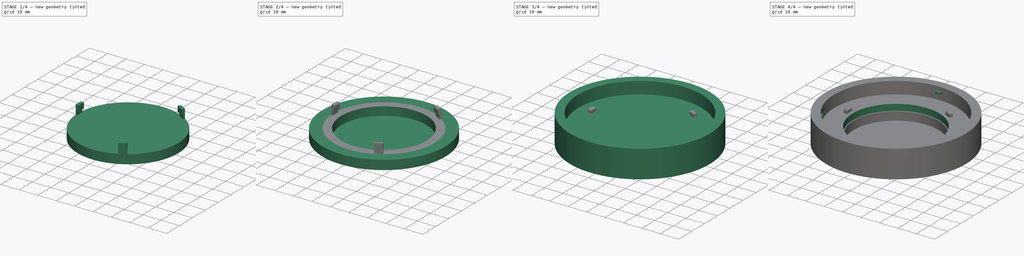
[diagram: build sequence overview — one tinted view per stage of 4, left to right]
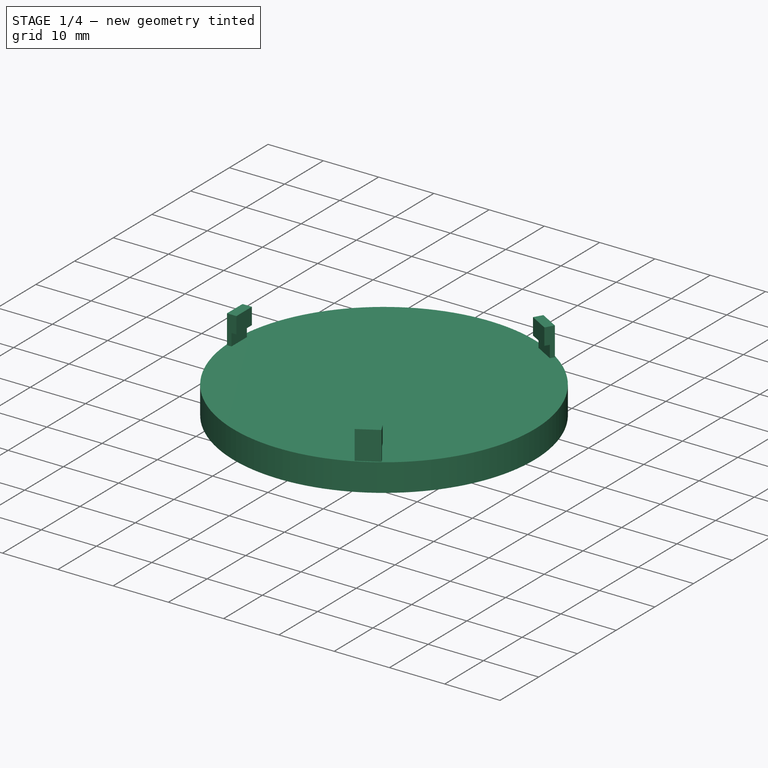
[diagram: stage 1 of 4 — iso view after this stage's code; geometry added in this stage tinted green]
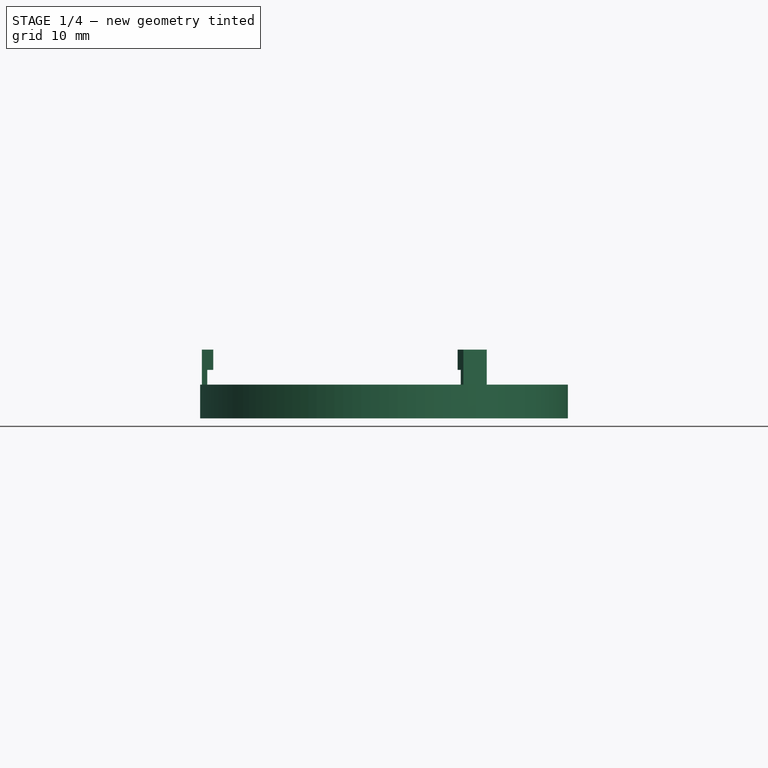
[diagram: stage 1 of 4 — front view after this stage's code; geometry added in this stage tinted green]
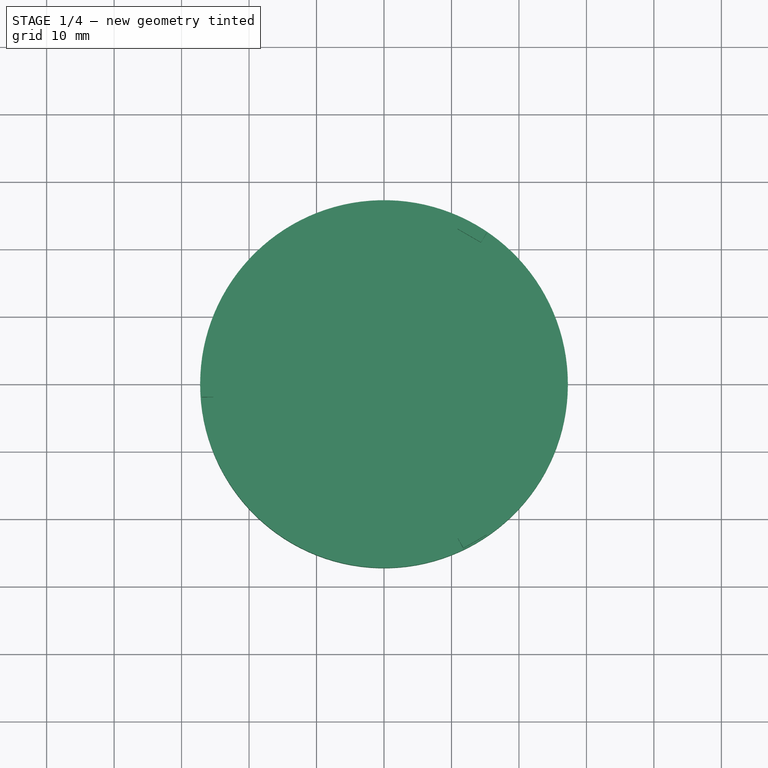
[diagram: stage 1 of 4 — top view after this stage's code; geometry added in this stage tinted green]
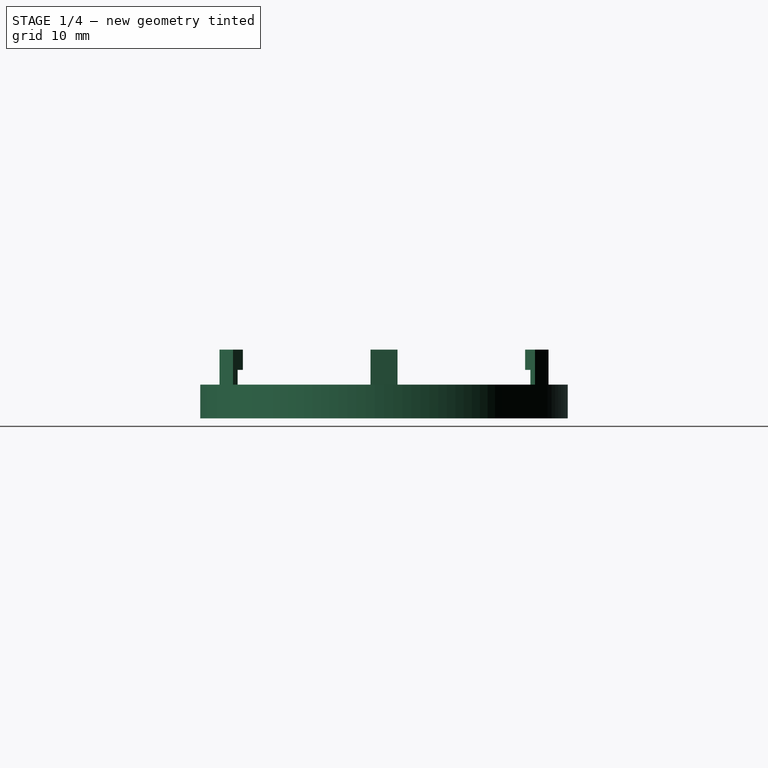
[diagram: stage 1 of 4 — right view after this stage's code; geometry added in this stage tinted green]
FCSTD DOCUMENT  (FreeCAD 0.19R22756 (Git))
Label: kitchen-lights-cover
License: All rights reserved
LicenseURL: http://en.wikipedia.org/wiki/All_rights_reserved
objects: Sketcher::SketchObject×9, PartDesign::Pad×6, PartDesign::Pocket×3, PartDesign::PolarPattern×2, PartDesign::Body×2, PartDesign::Plane×1, PartDesign::Fillet×1
note: 34 computed .brp shape members not serialized (recipe doc carries the construction recipe); baked Part::Feature solids carry a one-line shape summary decoded from their .brp

FEATURE [PartDesign::Body] Body  label="LightCover"
  Group = -> [Sketch,Pad,Sketch001,Pocket,Sketch002,Pocket001,DatumPlane,Sketch003,Pad001,PolarPattern]
  Origin = -> Origin
  Tip = -> PolarPattern
FEATURE [Sketcher::SketchObject] Sketch004
  MapMode = 5
  Support = -> [XY_Plane001]
  sketch-geometry (1):
    g0: Circle CenterX=0 CenterY=0 CenterZ=0 NormalX=0 NormalY=0 NormalZ=1 AngleXU=0 Radius=27.25
  constraints (2):
    c: Coincident(g0,g-1)
    c: Radius(g0) = 27.25  'base_radius'
FEATURE [PartDesign::Pad] Pad002
  Direction = (1,1,1)
  Length = 5
  Length2 = 100
  Profile = -> Sketch004
  Type = 0
FEATURE [Sketcher::SketchObject] Sketch005
  ExternalGeometry = -> [Pad002]
  MapMode = 5
  Placement = pos=(0,0,0) rot=(1,0,0;1.5708rad)
  Support = -> [XZ_Plane001]
  sketch-geometry (8):
    g0: LineSegment [constr] StartX=-27.25 StartY=5 StartZ=0 EndX=-27.25 EndY=0 EndZ=0
    g1: LineSegment StartX=-27 StartY=5 StartZ=0 EndX=-27 EndY=10.2 EndZ=0
    g2: LineSegment StartX=-27 StartY=10.2 StartZ=0 EndX=-25.3 EndY=10.2 EndZ=0
    g3: LineSegment StartX=-25.3 StartY=10.2 StartZ=0 EndX=-25.3 EndY=7.2 EndZ=0
    g4: LineSegment StartX=-25.3 StartY=7.2 StartZ=0 EndX=-26.2 EndY=7.2 EndZ=0
    g5: LineSegment [constr] StartX=-27.25 StartY=5 StartZ=0 EndX=-18.87 EndY=5 EndZ=0
    g6: LineSegment StartX=-26.2 StartY=7.2 StartZ=0 EndX=-26.2 EndY=5 EndZ=0
    g7: LineSegment StartX=-26.2 StartY=5 StartZ=0 EndX=-27 EndY=5 EndZ=0
  constraints (23):
    c: Coincident(g0,g-3)
    c: Coincident(g0,g-4)
    c: Vertical(g1)
    c: Coincident(g2,g1)
    c: Horizontal(g2)
    c: Coincident(g3,g2)
    c: Vertical(g3)
    c: Coincident(g4,g3)
    c: Horizontal(g4)
    c: Horizontal(g5)
    c: Coincident(g6,g4)
    c: PointOnObject(g6,g5)
    c: Vertical(g6)
    c: Coincident(g7,g6)
    c: Distance(g3) = 3
    c: Distance(g6,g1) = 0.8
    c: Distance(g2) = 1.7
    c: Coincident(g1,g7)
    c: Horizontal(g1,g0)
    c: Distance(g1) = 5.2
    c: Distance(g0,g1) = 0.25
    c: Coincident(g5,g0)
    c: Distance(g5) = 8.38
FEATURE [PartDesign::Pad] Pad003
  BaseFeature = -> Pad002
  Direction = (1,1,1)
  Length = 4
  Length2 = 100
  Midplane = true
  Profile = -> Sketch005
  Type = 0
FEATURE [PartDesign::PolarPattern] PolarPattern001
  Angle = 360
  Axis = -> Z_Axis001
  BaseFeature = -> Pad003
  Occurrences = 3
  Originals = -> [Pad003]
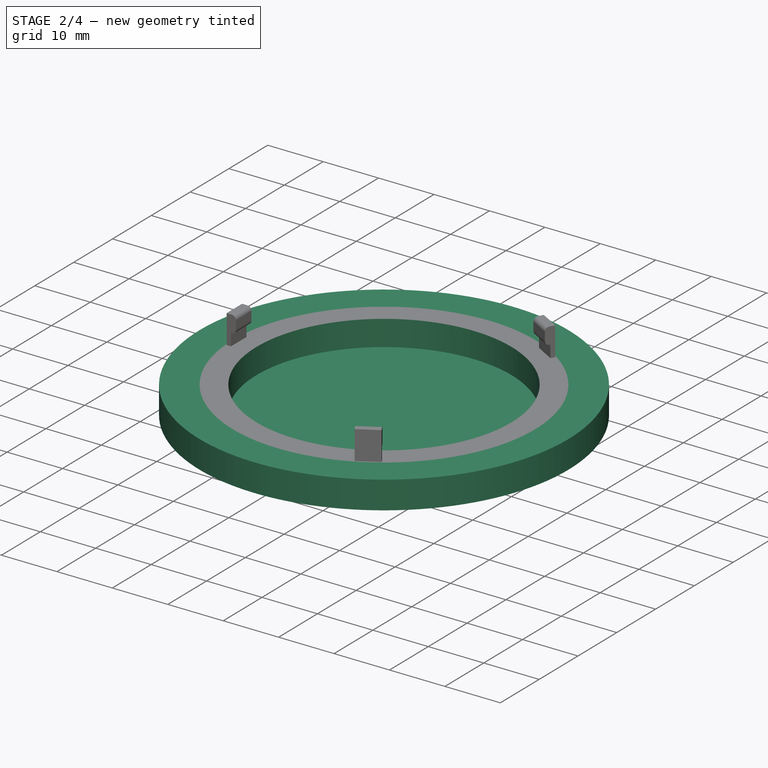
[diagram: stage 2 of 4 — iso view after this stage's code; geometry added in this stage tinted green]
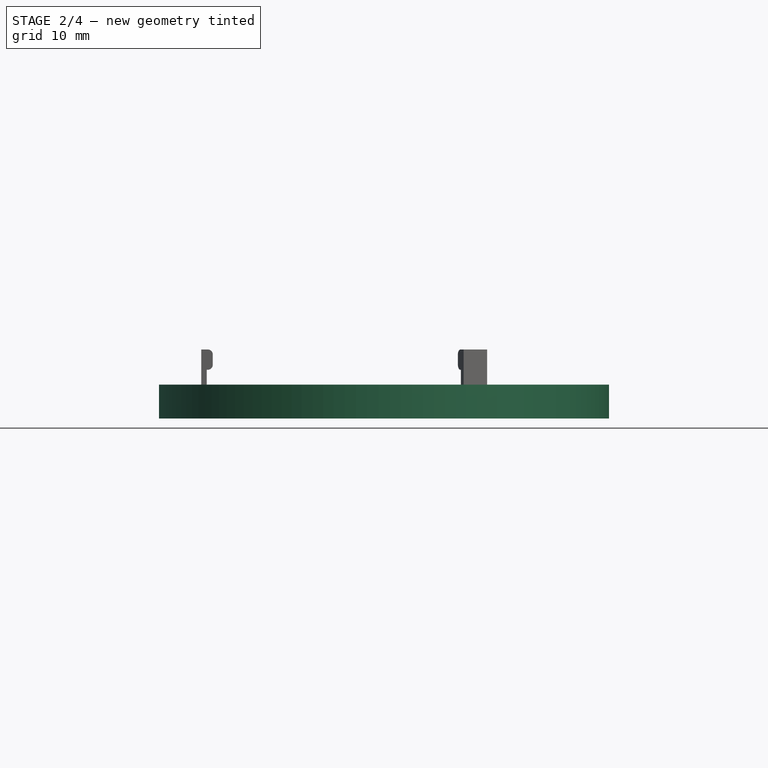
[diagram: stage 2 of 4 — front view after this stage's code; geometry added in this stage tinted green]
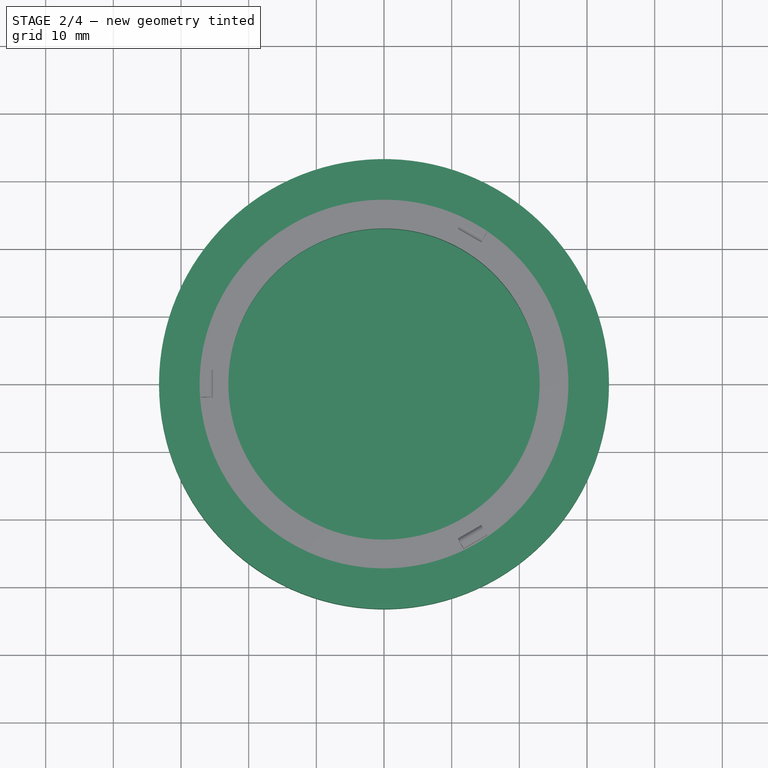
[diagram: stage 2 of 4 — top view after this stage's code; geometry added in this stage tinted green]
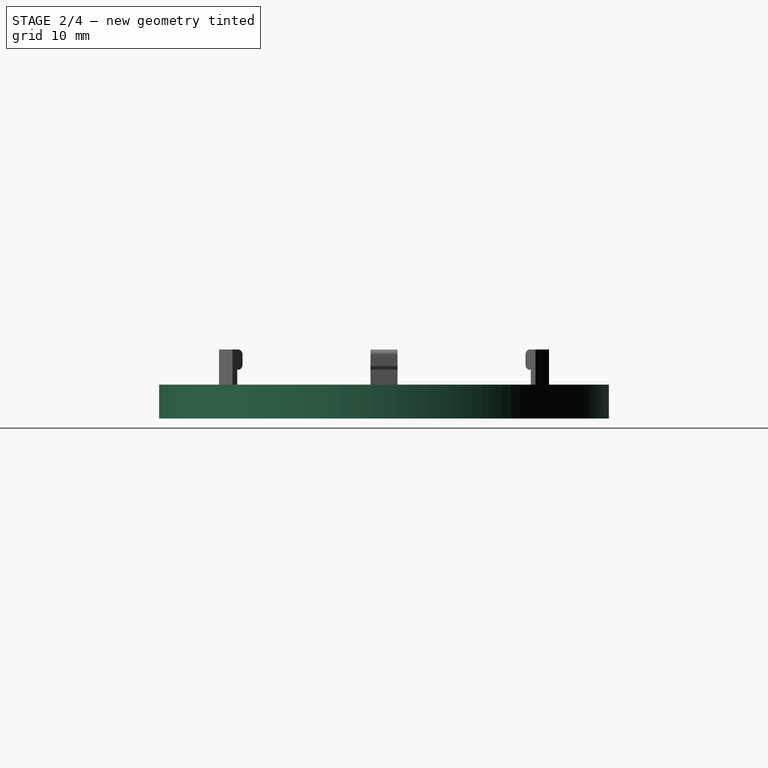
[diagram: stage 2 of 4 — right view after this stage's code; geometry added in this stage tinted green]
FEATURE [Sketcher::SketchObject] Sketch006
  MapMode = 5
  Placement = pos=(0,0,5) rot=(0,0,1;0rad)
  sketch-geometry (1):
    g0: Circle CenterX=0 CenterY=0 CenterZ=0 NormalX=0 NormalY=0 NormalZ=1 AngleXU=0 Radius=23
  constraints (2):
    c: Coincident(g0,g-1)
    c: Radius(g0) = 23
FEATURE [PartDesign::Pocket] Pocket002
  BaseFeature = -> PolarPattern001
  Length = 0
  Length2 = 100
  Offset = -0.4
  Profile = -> Sketch006
  Type = 3
  UpToFace = -> PolarPattern001 [Face2]
FEATURE [PartDesign::Fillet] Fillet
  Base = -> Pocket002 [Edge57,Edge58,Edge59,Edge60,Edge55,Edge56]
  BaseFeature = -> Pocket002
  Radius = 0.75
  SupportTransform = false
FEATURE [Sketcher::SketchObject] Sketch007
  MapMode = 5
  Placement = pos=(0,0,0) rot=(1,0,0;3.14159rad)
  Support = -> [Fillet]
  expr: Constraints[3] = <<Sketch004>>.Constraints.base_radius
  expr: .Constraints.outer_radius = <<Sketch004>>.Constraints.base_radius + 6mm
  sketch-geometry (2):
    g0: Circle CenterX=0 CenterY=0 CenterZ=0 NormalX=0 NormalY=0 NormalZ=1 AngleXU=0 Radius=33.25
    g1: Circle CenterX=0 CenterY=0 CenterZ=0 NormalX=0 NormalY=0 NormalZ=1 AngleXU=0 Radius=27.25
  constraints (4):
    c: Coincident(g0,g-1)
    c: Radius(g0) = 33.25  'outer_radius'
    c: Coincident(g1,g0)
    c: Radius(g1) = 27.25
FEATURE [PartDesign::Pad] Pad004
  BaseFeature = -> Fillet
  Direction = (1,1,1)
  Length = 10
  Length2 = 100
  Profile = -> Sketch007
  Type = 3
  UpToFace = -> Fillet [Face6]
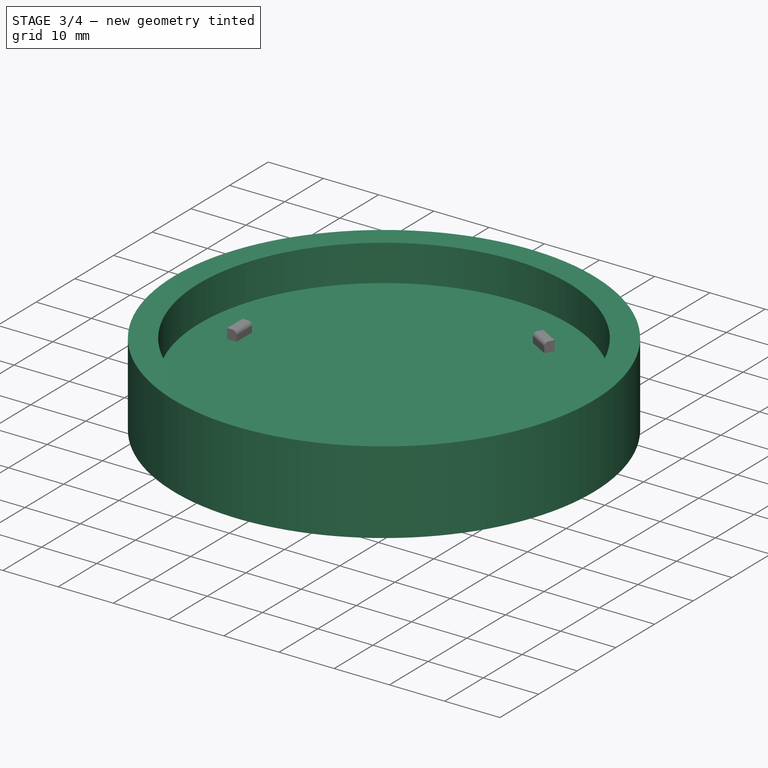
[diagram: stage 3 of 4 — iso view after this stage's code; geometry added in this stage tinted green]
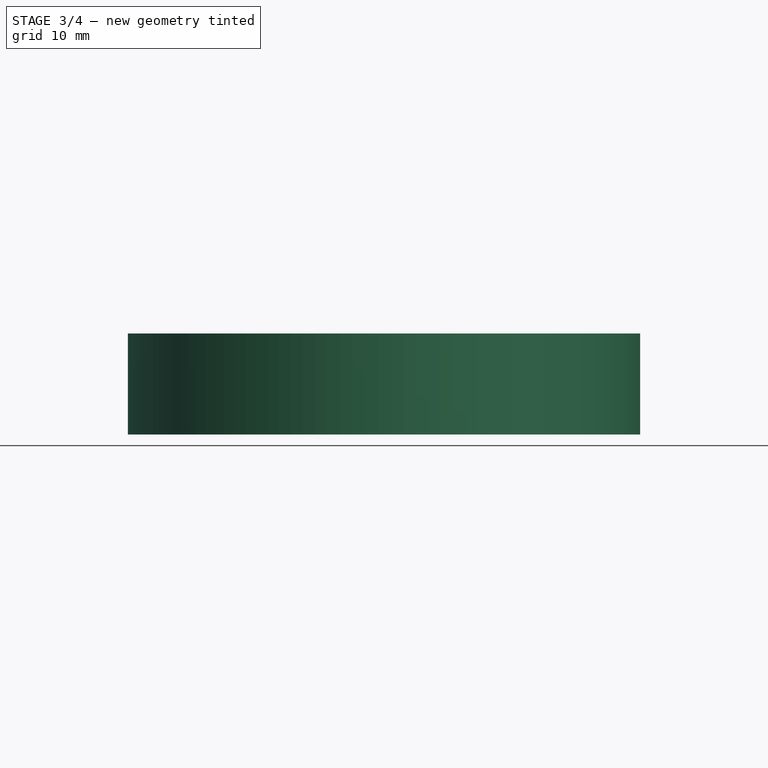
[diagram: stage 3 of 4 — front view after this stage's code; geometry added in this stage tinted green]
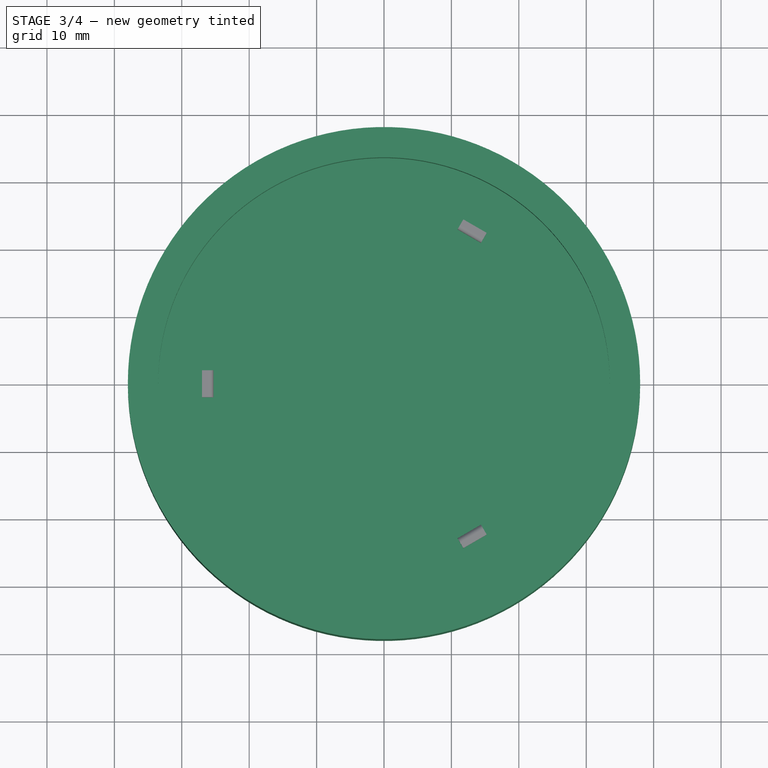
[diagram: stage 3 of 4 — top view after this stage's code; geometry added in this stage tinted green]
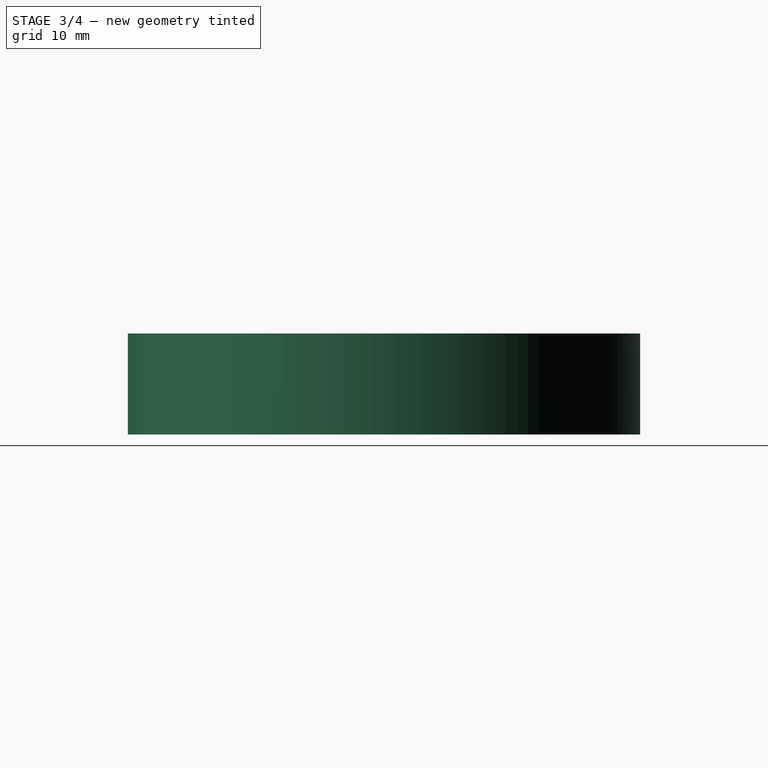
[diagram: stage 3 of 4 — right view after this stage's code; geometry added in this stage tinted green]
FEATURE [Sketcher::SketchObject] Sketch
  MapMode = 5
  Support = -> [XY_Plane]
  sketch-geometry (1):
    g0: Circle CenterX=0 CenterY=0 CenterZ=0 NormalX=0 NormalY=0 NormalZ=1 AngleXU=0 Radius=38
  constraints (2):
    c: Coincident(g0,g-1)
    c: Radius(g0) = 38
FEATURE [PartDesign::Pad] Pad
  Direction = (1,1,1)
  Length = 15
  Length2 = 100
  Profile = -> Sketch
  Type = 0
FEATURE [Sketcher::SketchObject] Sketch001
  MapMode = 5
  Placement = pos=(0,0,15) rot=(0,0,1;0rad)
  Support = -> [Pad]
  sketch-geometry (1):
    g0: Circle CenterX=0 CenterY=0 CenterZ=0 NormalX=0 NormalY=0 NormalZ=1 AngleXU=0 Radius=33.5
  constraints (2):
    c: Coincident(g0,g-1)
    c: Radius(g0) = 33.5
FEATURE [PartDesign::Pocket] Pocket
  BaseFeature = -> Pad
  Length = 6.6
  Length2 = 100
  Profile = -> Sketch001
  Type = 0
FEATURE [Sketcher::SketchObject] Sketch008
  MapMode = 5
  Placement = pos=(0,0,5) rot=(0,0,1;0rad)
  Support = -> [Pad004]
  expr: Constraints[3] = Constraints[1] - 1mm
  expr: Constraints[1] = <<Sketch007>>.Constraints.outer_radius
  sketch-geometry (2):
    g0: Circle CenterX=0 CenterY=0 CenterZ=0 NormalX=0 NormalY=0 NormalZ=1 AngleXU=0 Radius=33.25
    g1: Circle CenterX=0 CenterY=0 CenterZ=0 NormalX=0 NormalY=0 NormalZ=1 AngleXU=0 Radius=32.25
  constraints (4):
    c: Coincident(g0,g-1)
    c: Radius(g0) = 33.25
    c: Coincident(g1,g0)
    c: Radius(g1) = 32.25
FEATURE [PartDesign::Pad] Pad005
  BaseFeature = -> Pad004
  Direction = (1,1,1)
  Length = 0.4
  Length2 = 100
  Profile = -> Sketch008
  Type = 0
FEATURE [PartDesign::Body] Body001  label="ExtractHoodLightCover"
  Group = -> [Sketch004,Pad002,Sketch005,Pad003,PolarPattern001,Sketch006,Pocket002,Fillet,Sketch007,Pad004,Sketch008,Pad005]
  Origin = -> Origin001
  Tip = -> Pad005
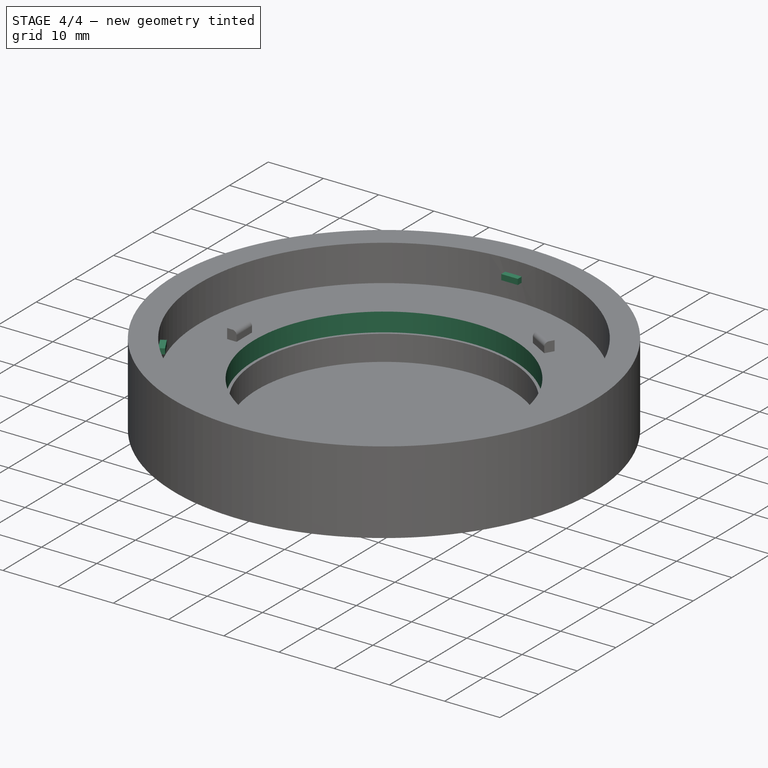
[diagram: stage 4 of 4 — iso view after this stage's code; geometry added in this stage tinted green]
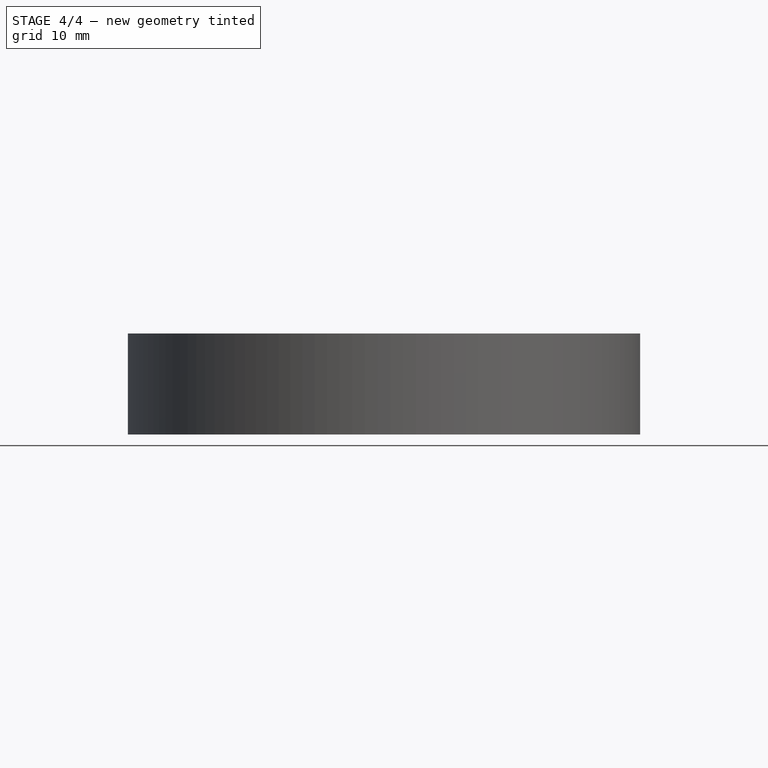
[diagram: stage 4 of 4 — front view after this stage's code; geometry added in this stage tinted green]
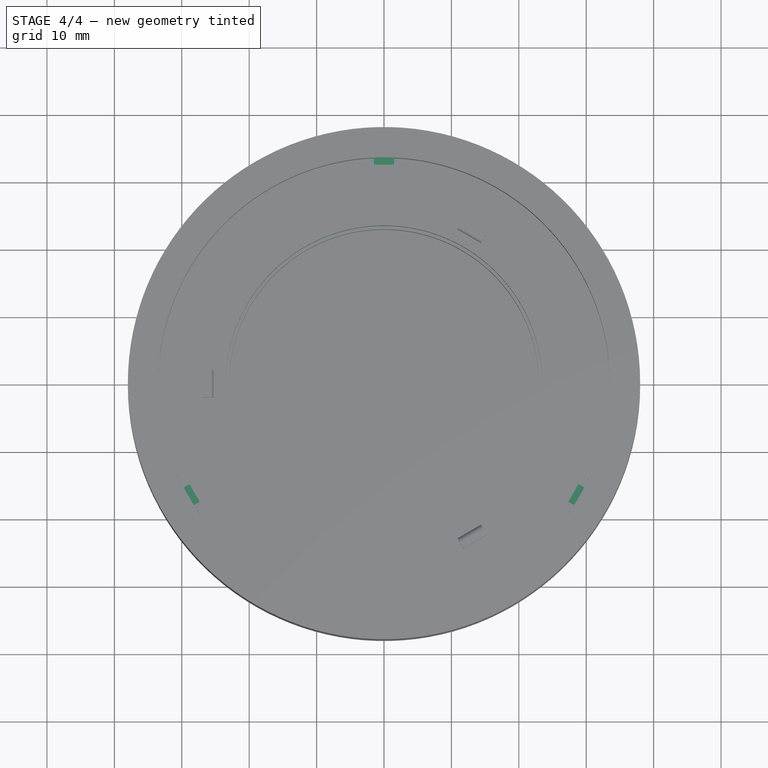
[diagram: stage 4 of 4 — top view after this stage's code; geometry added in this stage tinted green]
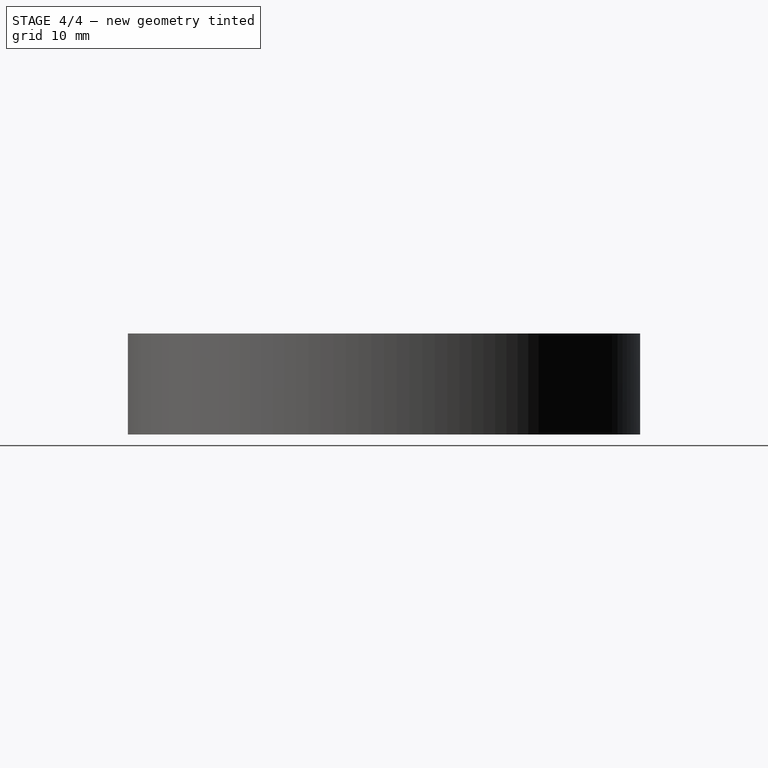
[diagram: stage 4 of 4 — right view after this stage's code; geometry added in this stage tinted green]
FEATURE [Sketcher::SketchObject] Sketch002
  MapMode = 5
  Placement = pos=(0,0,8.4) rot=(0,0,1;0rad)
  Support = -> [Pocket]
  sketch-geometry (1):
    g0: Circle CenterX=0 CenterY=0 CenterZ=0 NormalX=0 NormalY=0 NormalZ=1 AngleXU=0 Radius=23.5
  constraints (2):
    c: Coincident(g0,g-1)
    c: Radius(g0) = 23.5
FEATURE [PartDesign::Pocket] Pocket001
  BaseFeature = -> Pocket
  Length = 8
  Length2 = 100
  Profile = -> Sketch002
  Type = 0
FEATURE [PartDesign::Plane] DatumPlane
  AttachmentOffset = pos=(0,0,-2.8) rot=(0,0,1;0rad)
  Length = 91.2
  MapMode = 5
  Placement = pos=(0,0,12.2) rot=(0,0,1;0rad)
  ResizeMode = 0
  Support = -> [Pocket001]
  Width = 91.2
FEATURE [Sketcher::SketchObject] Sketch003
  MapMode = 5
  Placement = pos=(0,0,12) rot=(0,0,1;0rad)
  Support = -> [DatumPlane]
  expr: Constraints[1] = Sketch001.Constraints[1]
  expr: Constraints[12] = Constraints[8] / 2
  sketch-geometry (6):
    g0: Circle [constr] CenterX=0 CenterY=0 CenterZ=0 NormalX=0 NormalY=0 NormalZ=1 AngleXU=0 Radius=33.5
    g1: LineSegment StartX=-1.5 StartY=32.4664 StartZ=0 EndX=1.5 EndY=32.4664 EndZ=0
    g2: LineSegment StartX=1.5 StartY=32.4664 StartZ=0 EndX=1.5 EndY=33.4664 EndZ=0
    g3: LineSegment StartX=-1.5 StartY=32.4664 StartZ=0 EndX=-1.5 EndY=33.4664 EndZ=0
    g4: LineSegment [constr] StartX=0 StartY=0 StartZ=0 EndX=0 EndY=79.9562 EndZ=0
    g5: ArcOfCircle CenterX=3.208e-13 CenterY=8.24991e-10 CenterZ=0 NormalX=0 NormalY=0 NormalZ=1 AngleXU=0 Radius=33.5 StartAngle=1.52601 EndAngle=1.61559
  constraints (17):
    c: Coincident(g0,g-1)
    c: Radius(g0) = 33.5
    c: Horizontal(g1)
    c: Coincident(g2,g1)
    c: Vertical(g2)
    c: Coincident(g3,g1)
    c: Vertical(g3)
    c: Horizontal(g3,g2)
    c: Distance(g1,g2) = 3
    c: Distance(g3) = 1
    c: Coincident(g4,g0)
    c: Vertical(g4)
    c: Distance(g1,g4) = 1.5
    c: PointOnObject(g3,g0)
    c: Coincident(g5,g3)
    c: Coincident(g5,g2)
    c: Tangent(g0,g5)
FEATURE [PartDesign::Pad] Pad001
  BaseFeature = -> Pocket001
  Direction = (1,1,1)
  Length = 1
  Length2 = 100
  Midplane = true
  Profile = -> Sketch003
  Type = 0
FEATURE [PartDesign::PolarPattern] PolarPattern
  Angle = 360
  Axis = -> Sketch003 [N_Axis]
  BaseFeature = -> Pad001
  Occurrences = 3
  Originals = -> [Pad001]
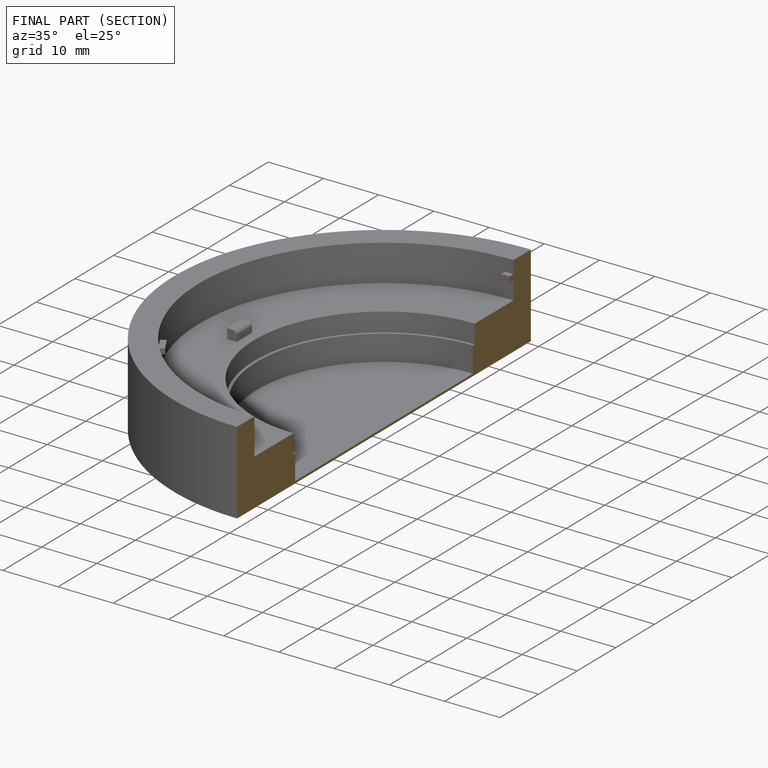
[diagram: finished part — half-section view (interior)]
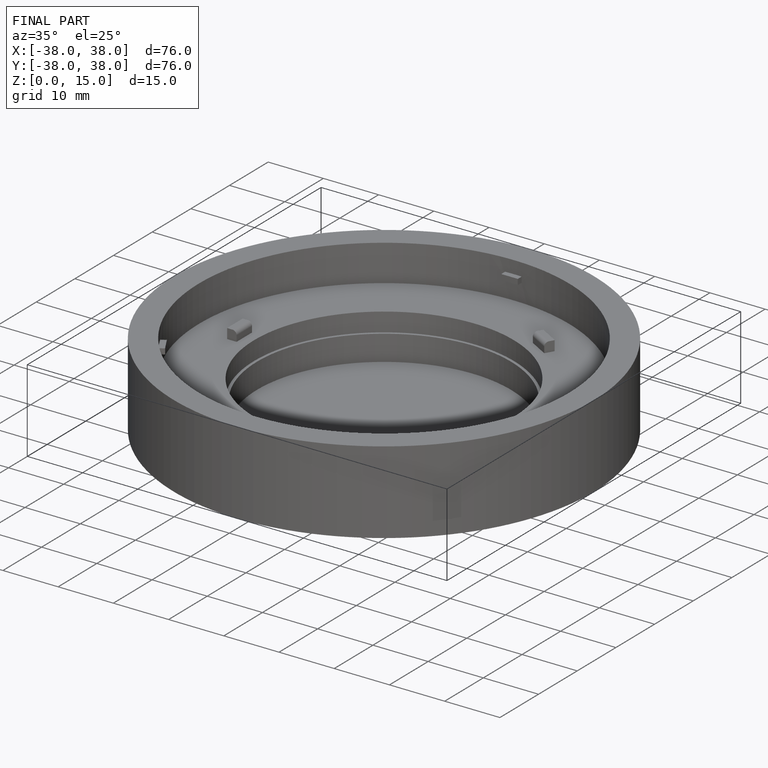
[diagram: finished part — iso view with bounding-box wireframe]
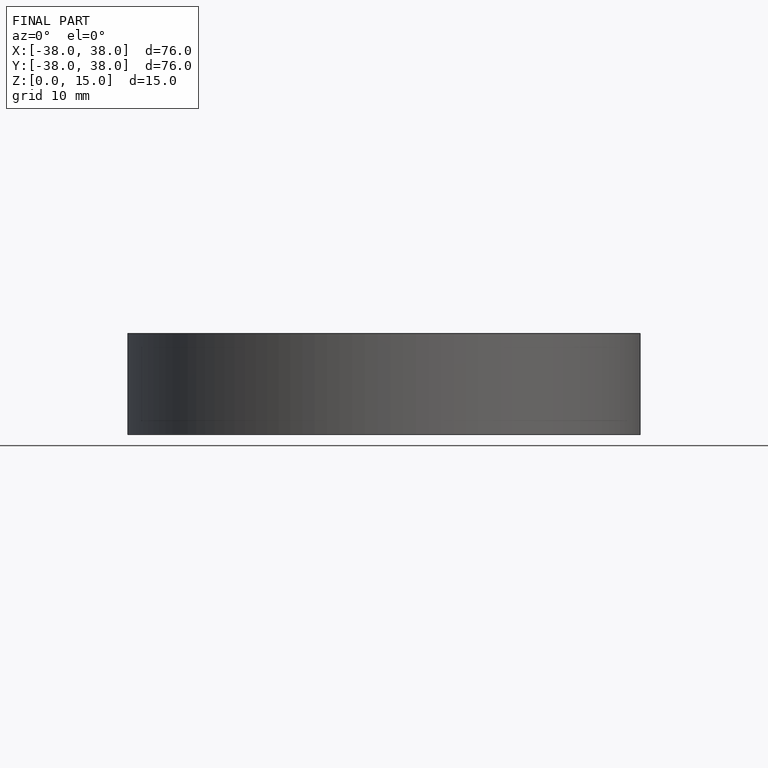
[diagram: finished part — front view with bounding-box wireframe]
